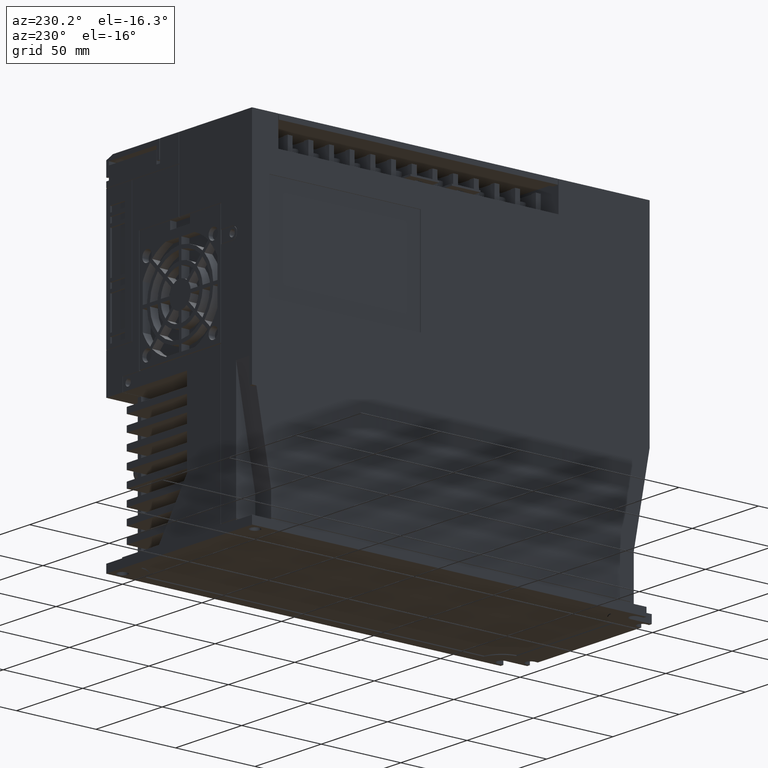
[diagram: clean part render]
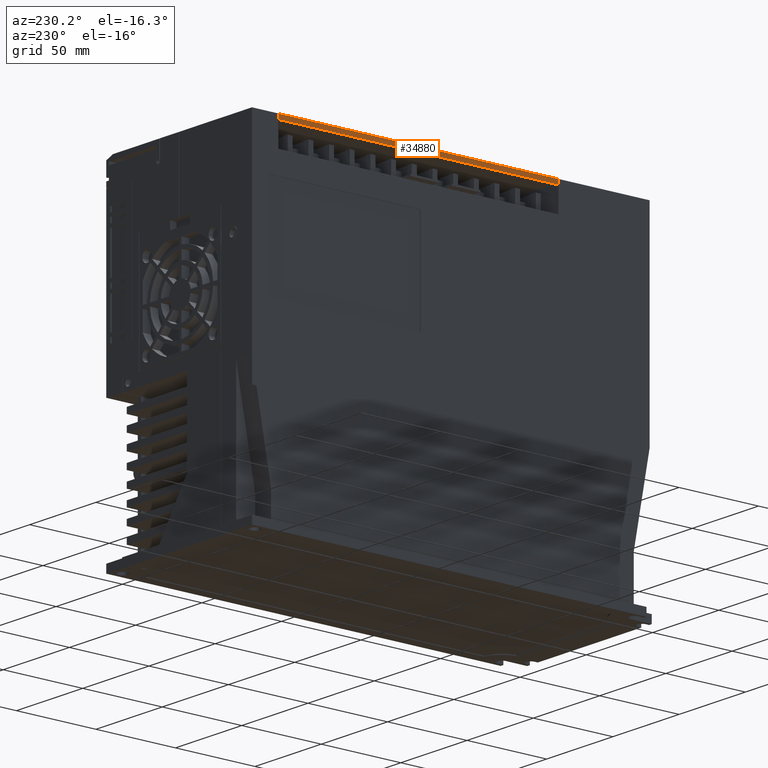
[diagram: same view with one face highlighted and labeled with its STEP entity id]
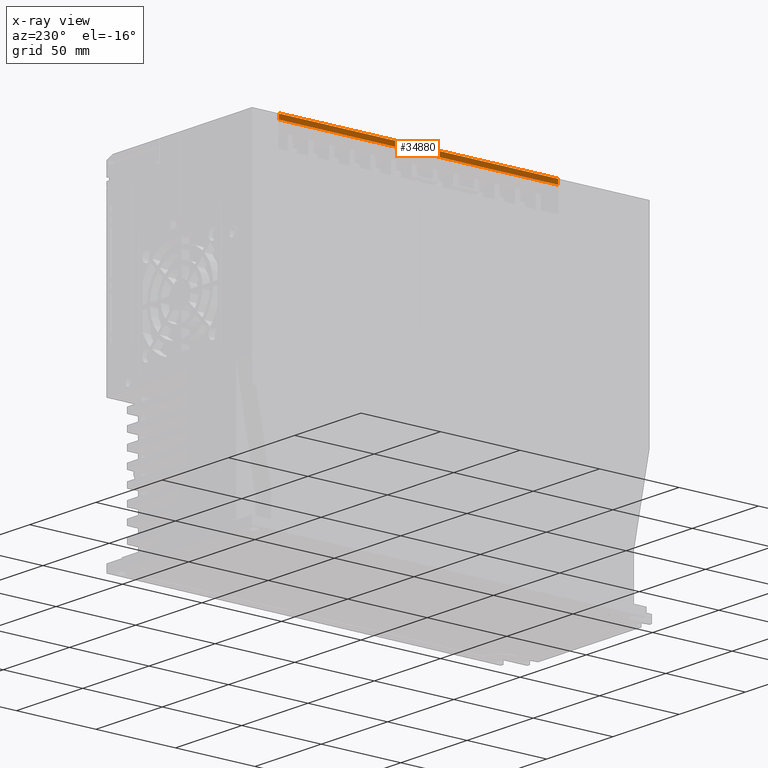
[diagram: x-ray of the same camera — body ghosted, the highlighted face saturated]
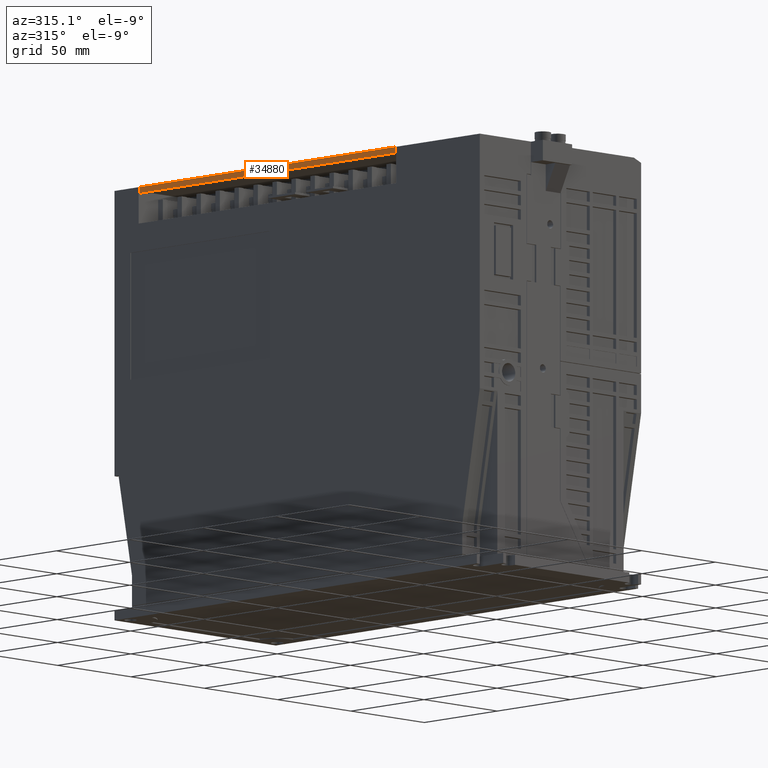
[diagram: same view with one face highlighted and labeled with its STEP entity id]
A machine part, auxiliary view. The second image highlights one B-rep face of the part: STEP entity #34880.
The next image is the same camera in x-ray: the body ghosted, the highlighted face saturated — about 0% of this face is hidden behind the body in this view.
A second angle (auxiliary view) of the same face is appended — the face is thin or edge-on in the first view.
In plain terms, the highlighted planar face has unit normal (1, 0, 0).
Its self-contained STEP definition (entity closure, byte-faithful):
#10146=ORIENTED_EDGE('',*,*,#14891,.T.);
#10147=ORIENTED_EDGE('',*,*,#14892,.F.);
#10148=ORIENTED_EDGE('',*,*,#14893,.F.);
#10149=ORIENTED_EDGE('',*,*,#14894,.T.);
#14891=EDGE_CURVE('',#18105,#18106,#22339,.T.);
#14892=EDGE_CURVE('',#18107,#18106,#22340,.T.);
#14893=EDGE_CURVE('',#18108,#18107,#22341,.T.);
#14894=EDGE_CURVE('',#18108,#18105,#22342,.T.);
#18105=VERTEX_POINT('',#56189);
#18106=VERTEX_POINT('',#56190);
#18107=VERTEX_POINT('',#56192);
#18108=VERTEX_POINT('',#56194);
#22339=LINE('',#56188,#26574);
#22340=LINE('',#56191,#26575);
#22341=LINE('',#56193,#26576);
#22342=LINE('',#56195,#26577);
#26574=VECTOR('',#46331,1000.);
#26575=VECTOR('',#46332,1000.);
#26576=VECTOR('',#46333,1000.);
#26577=VECTOR('',#46334,1000.);
#28918=EDGE_LOOP('',(#10146,#10147,#10148,#10149));
#31261=FACE_BOUND('',#28918,.T.);
#32959=PLANE('',#37310);
#34880=ADVANCED_FACE('',(#31261),#32959,.F.);
#37310=AXIS2_PLACEMENT_3D('',#56187,#46329,#46330);
#46329=DIRECTION('',(1.,0.,0.));
#46330=DIRECTION('',(0.,1.,0.));
#46331=DIRECTION('',(0.,0.,1.));
#46332=DIRECTION('',(0.,-1.,0.));
#46333=DIRECTION('',(0.,0.,1.));
#46334=DIRECTION('',(0.,-1.,0.));
#56187=CARTESIAN_POINT('',(-35.5,87.75,0.500000000000028));
#56188=CARTESIAN_POINT('',(-35.50000000001,-87.75000000001,0.500000000010028));
#56189=CARTESIAN_POINT('',(-35.5,-87.75,0.500000000000028));
#56190=CARTESIAN_POINT('',(-35.5,-87.75,3.5));
#56191=CARTESIAN_POINT('',(-35.50000000001,87.75000000001,3.50000000001));
#56192=CARTESIAN_POINT('',(-35.5,87.75,3.5));
#56193=CARTESIAN_POINT('',(-35.50000000001,87.75000000001,0.500000000010028));
#56194=CARTESIAN_POINT('',(-35.5,87.75,0.500000000000028));
#56195=CARTESIAN_POINT('',(-35.50000000001,87.75000000001,0.500000000010028));